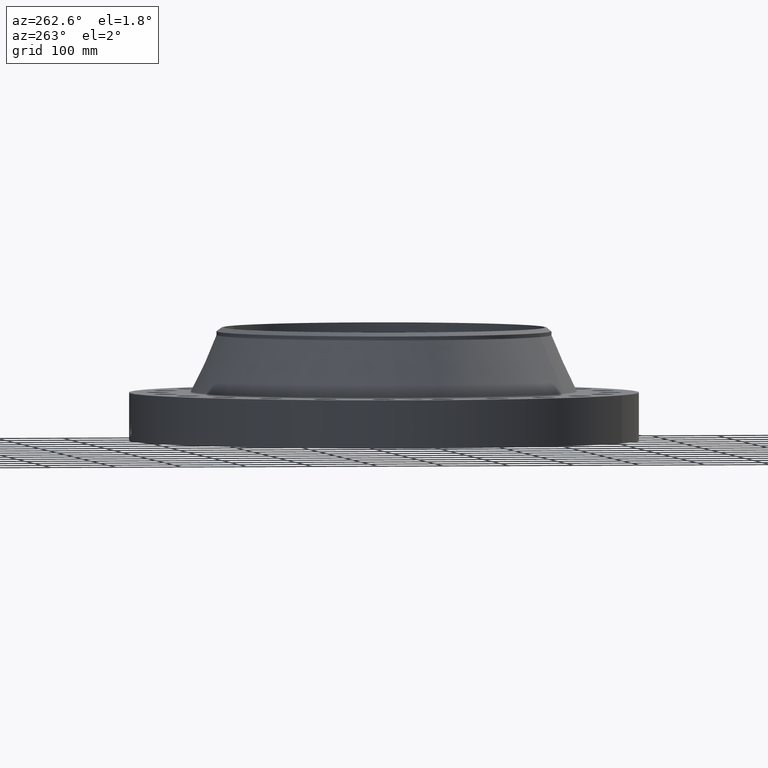
[diagram: clean part render]
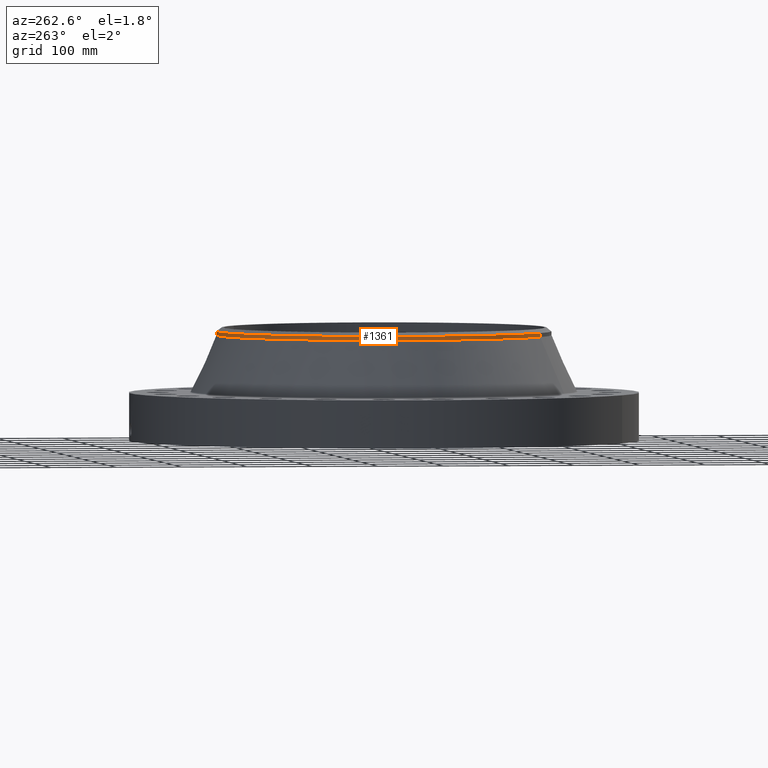
[diagram: same view with one face highlighted and labeled with its STEP entity id]
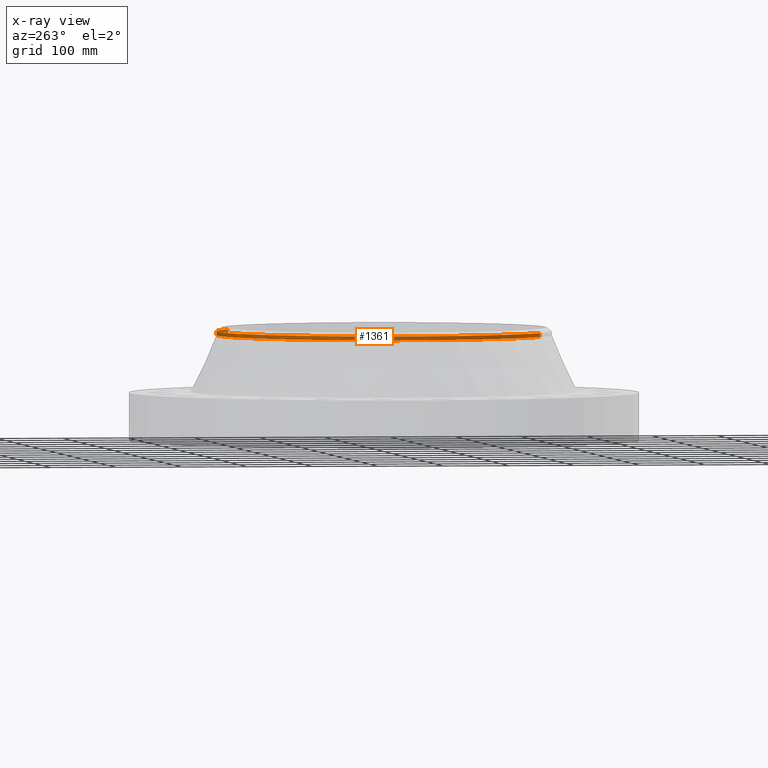
[diagram: x-ray of the same camera — body ghosted, the highlighted face saturated]
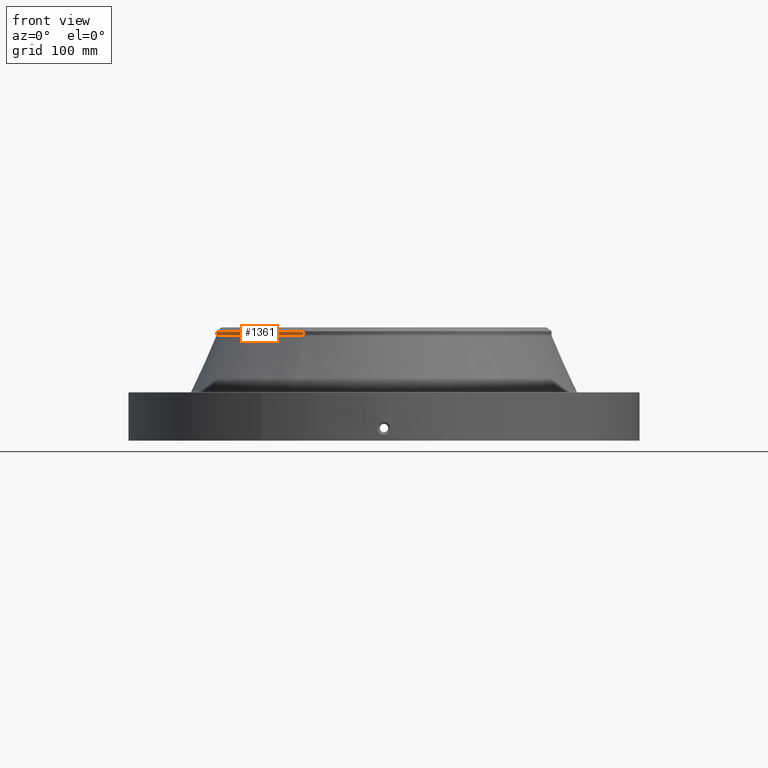
[diagram: same view with one face highlighted and labeled with its STEP entity id]
A machine part, auxiliary view. The second image highlights one B-rep face of the part: STEP entity #1361.
The next image is the same camera in x-ray: the body ghosted, the highlighted face saturated — about 1% of this face is hidden behind the body in this view.
A second angle (front view) of the same face is appended — the face is thin or edge-on in the first view.
In plain terms, the highlighted cylindrical surface (partial cylindrical patch) has radius 254 mm, axis along (0, 0, -1).
Its self-contained STEP definition (entity closure, byte-faithful):
#969=AXIS2_PLACEMENT_3D('Circle Axis2P3D',#967,#968,$) ;
#996=AXIS2_PLACEMENT_3D('Circle Axis2P3D',#994,#995,$) ;
#1333=AXIS2_PLACEMENT_3D('Cylinder Axis2P3D',#1330,#1331,#1332) ;
#1344=AXIS2_PLACEMENT_3D('Circle Axis2P3D',#1342,#1343,$) ;
#964=CARTESIAN_POINT('Vertex',(-4.79425538606,8.77582561894,6.52767182741)) ;
#967=CARTESIAN_POINT('Axis2P3D Location',(0.,0.,6.52767182741)) ;
#971=CARTESIAN_POINT('Vertex',(-4.79425538606,-8.77582561894,6.52767182741)) ;
#991=CARTESIAN_POINT('Vertex',(4.79425538606,8.77582561894,6.52767182741)) ;
#994=CARTESIAN_POINT('Axis2P3D Location',(0.,0.,6.52767182741)) ;
#1330=CARTESIAN_POINT('Axis2P3D Location',(0.,0.,3.37750000001)) ;
#1335=CARTESIAN_POINT('Line Origine',(4.79425538606,8.77582561894,6.40956159119)) ;
#1339=CARTESIAN_POINT('Vertex',(4.79425538606,8.77582561894,6.29145135497)) ;
#1342=CARTESIAN_POINT('Axis2P3D Location',(0.,0.,6.29145135497)) ;
#1346=CARTESIAN_POINT('Vertex',(-4.79425538606,-8.77582561894,6.29145135497)) ;
#1349=CARTESIAN_POINT('Line Origine',(-4.79425538606,-8.77582561894,6.40956159119)) ;
#968=DIRECTION('Axis2P3D Direction',(0.,0.,-0.0393700787402)) ;
#995=DIRECTION('Axis2P3D Direction',(0.,0.,-0.0393700787402)) ;
#1331=DIRECTION('Axis2P3D Direction',(0.,0.,-0.0393700787402)) ;
#1332=DIRECTION('Axis2P3D XDirection',(0.0188750212049,0.0345504945626,0.)) ;
#1336=DIRECTION('Vector Direction',(0.,0.,-0.0393700787402)) ;
#1343=DIRECTION('Axis2P3D Direction',(0.,0.,-0.0393700787402)) ;
#1350=DIRECTION('Vector Direction',(0.,0.,-0.0393700787402)) ;
#1337=VECTOR('Line Direction',#1336,0.0393700787402) ;
#1351=VECTOR('Line Direction',#1350,0.0393700787402) ;
#1355=ORIENTED_EDGE('',*,*,#1341,.F.) ;
#1356=ORIENTED_EDGE('',*,*,#1348,.F.) ;
#1357=ORIENTED_EDGE('',*,*,#1353,.T.) ;
#1358=ORIENTED_EDGE('',*,*,#973,.F.) ;
#1359=ORIENTED_EDGE('',*,*,#998,.T.) ;
#1361=ADVANCED_FACE('PartBody',(#1360),#1334,.T.) ;
#970=CIRCLE('generated circle',#969,10.) ;
#997=CIRCLE('generated circle',#996,10.) ;
#1345=CIRCLE('generated circle',#1344,10.) ;
#1334=CYLINDRICAL_SURFACE('generated cylinder',#1333,10.) ;
#973=EDGE_CURVE('',#965,#972,#970,.F.) ;
#998=EDGE_CURVE('',#965,#992,#997,.T.) ;
#1341=EDGE_CURVE('',#1340,#992,#1338,.F.) ;
#1348=EDGE_CURVE('',#1347,#1340,#1345,.T.) ;
#1353=EDGE_CURVE('',#1347,#972,#1352,.F.) ;
#1354=EDGE_LOOP('',(#1355,#1356,#1357,#1358,#1359)) ;
#1360=FACE_OUTER_BOUND('',#1354,.T.) ;
#1338=LINE('Line',#1335,#1337) ;
#1352=LINE('Line',#1349,#1351) ;
#965=VERTEX_POINT('',#964) ;
#972=VERTEX_POINT('',#971) ;
#992=VERTEX_POINT('',#991) ;
#1340=VERTEX_POINT('',#1339) ;
#1347=VERTEX_POINT('',#1346) ;